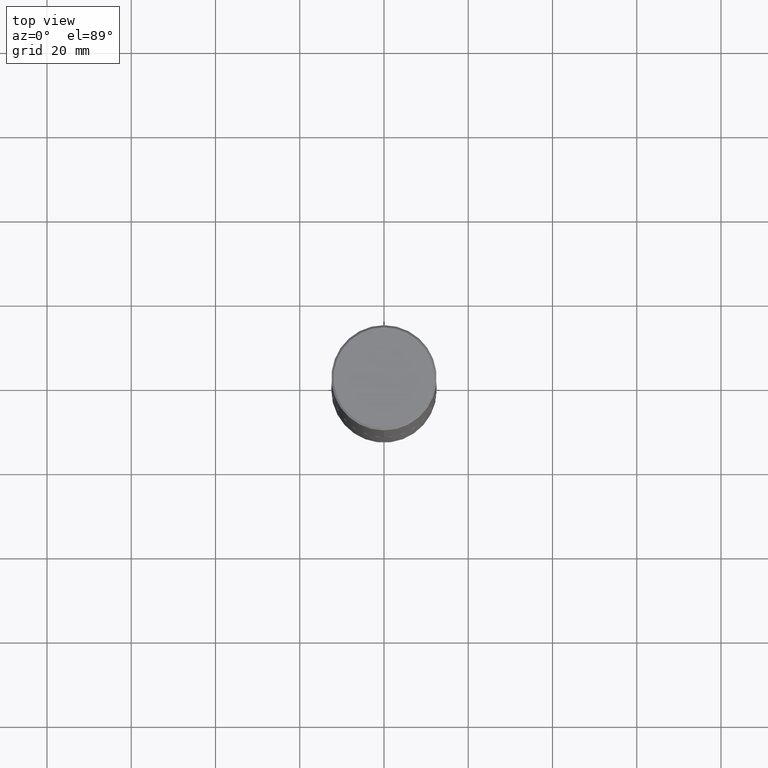
[diagram: clean part render]
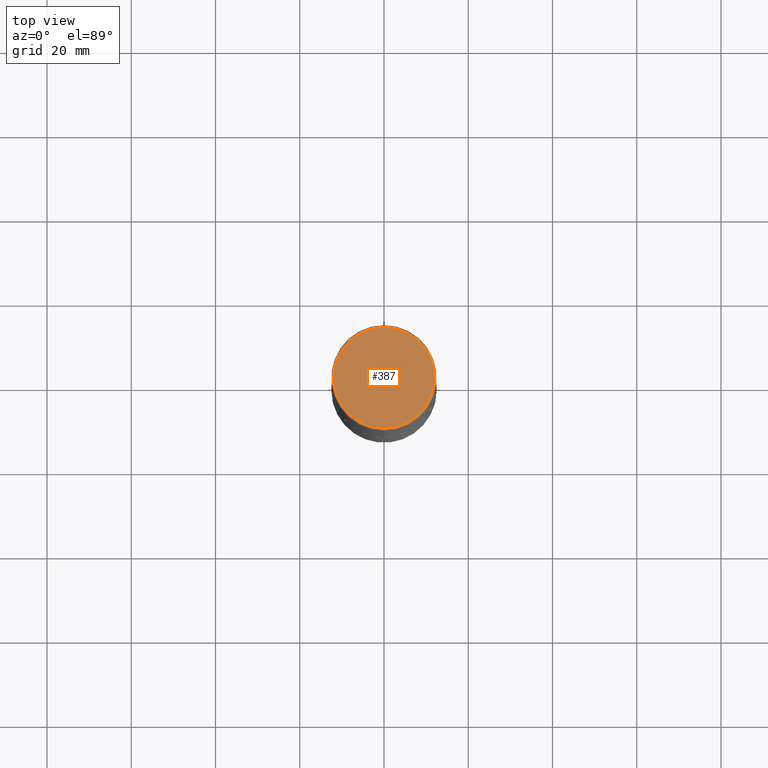
[diagram: same view with one face highlighted and labeled with its STEP entity id]
A machine part, top view. The second image highlights one B-rep face of the part: STEP entity #387.
In plain terms, the highlighted planar face has unit normal (0, -0, -1).
Its self-contained STEP definition (entity closure, byte-faithful):
#1 = DIRECTION ( 'NONE',  ( -6.982962677686265922E-15, -1.000000000000000000, 3.490754157143982946E-15 ) ) ;
#4 = DIRECTION ( 'NONE',  ( 2.445976594451651392E-29, -3.490754157143982552E-15, -1.000000000000000000 ) ) ;
#14 = FACE_OUTER_BOUND ( 'NONE', #245, .T. ) ;
#17 = DIRECTION ( 'NONE',  ( -2.445976594451651952E-29, 3.490754157143982552E-15, 1.000000000000000000 ) ) ;
#31 = CARTESIAN_POINT ( 'NONE',  ( -5.420756467185317189E-45, 7.736185299407739239E-31, 2.216193106459615290E-16 ) ) ;
#66 = CIRCLE ( 'NONE', #391, 0.4721499999999996255 ) ;
#73 = ORIENTED_EDGE ( 'NONE', *, *, #268, .T. ) ;
#93 = CARTESIAN_POINT ( 'NONE',  ( 3.366835455046432084E-15, 0.4721499999999996255, -1.426540264649568516E-15 ) ) ;
#128 = DIRECTION ( 'NONE',  ( -6.982962677686265922E-15, -1.000000000000000000, 3.490754157143982946E-15 ) ) ;
#129 = VERTEX_POINT ( 'NONE', #93 ) ;
#138 = CARTESIAN_POINT ( 'NONE',  ( 3.297005828269567997E-15, 0.4721499999999996255, -1.537349919972549256E-15 ) ) ;
#171 = AXIS2_PLACEMENT_3D ( 'NONE', #224, #17, #128 ) ;
#184 = DIRECTION ( 'NONE',  ( -2.445976594451651952E-29, 3.490754157143982552E-15, 1.000000000000000000 ) ) ;
#188 = AXIS2_PLACEMENT_3D ( 'NONE', #138, #4, #273 ) ;
#209 = ORIENTED_EDGE ( 'NONE', *, *, #210, .T. ) ;
#210 = EDGE_CURVE ( 'NONE', #129, #233, #66, .T. ) ;
#223 = PLANE ( 'NONE',  #188 ) ;
#224 = CARTESIAN_POINT ( 'NONE',  ( -5.420756467185317189E-45, 7.736185299407739239E-31, 2.216193106459615290E-16 ) ) ;
#233 = VERTEX_POINT ( 'NONE', #264 ) ;
#245 = EDGE_LOOP ( 'NONE', ( #209, #73 ) ) ;
#264 = CARTESIAN_POINT ( 'NONE',  ( -3.307789109625541747E-15, -0.4721499999999996255, 1.869778885941491673E-15 ) ) ;
#268 = EDGE_CURVE ( 'NONE', #233, #129, #272, .T. ) ;
#272 = CIRCLE ( 'NONE', #171, 0.4721499999999996255 ) ;
#273 = DIRECTION ( 'NONE',  ( 6.982962677686265922E-15, 1.000000000000000000, -3.490754157143982552E-15 ) ) ;
#387 = ADVANCED_FACE ( 'NONE', ( #14 ), #223, .F. ) ;
#391 = AXIS2_PLACEMENT_3D ( 'NONE', #31, #184, #1 ) ;